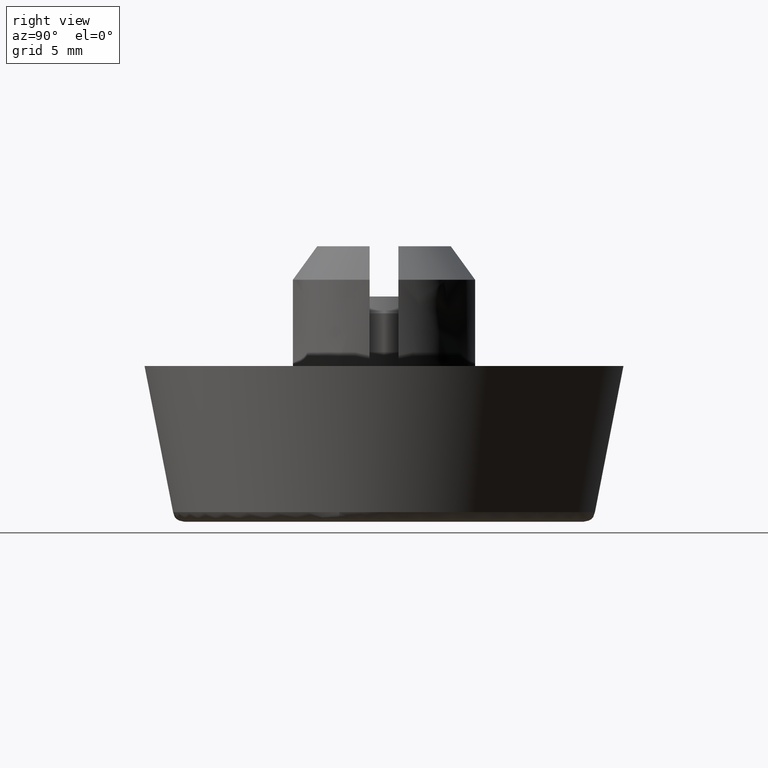
[diagram: clean part render]
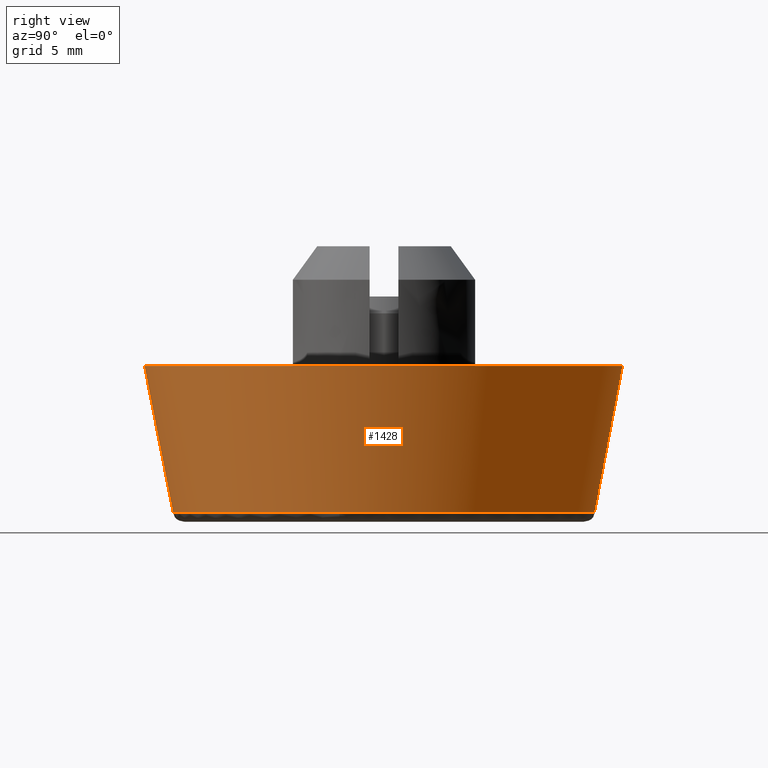
[diagram: same view with one face highlighted and labeled with its STEP entity id]
A machine part, right view. The second image highlights one B-rep face of the part: STEP entity #1428.
In plain terms, the highlighted face is a freeform B-spline surface patch.
Its self-contained STEP definition (entity closure, byte-faithful):
#1006=CARTESIAN_POINT('',(8.627317969124563,-1.871597676116213,-6.094423741713268));
#1007=VERTEX_POINT('',#1006);
#1008=CARTESIAN_POINT('',(8.827994857375364,0.0,-6.094423741647701));
#1009=VERTEX_POINT('',#1008);
#1010=CARTESIAN_POINT('',(8.627317969124565,-1.871597676116212,-6.094423741713268));
#1011=CARTESIAN_POINT('',(8.827994857369202,-0.946557350420813,-6.094423741680484));
#1012=CARTESIAN_POINT('',(8.827994857375364,0.0,-6.094423741647701));
#1020=(BOUNDED_CURVE()B_SPLINE_CURVE(2,(#1010,#1011,#1012),.UNSPECIFIED.,.F.,.U.)B_SPLINE_CURVE_WITH_KNOTS((3,3),(0.927406517058512,1.0),.UNSPECIFIED.)CURVE()GEOMETRIC_REPRESENTATION_ITEM()RATIONAL_B_SPLINE_CURVE((0.927299386196329,0.957475722232776,1.0))REPRESENTATION_ITEM(''));
#1021=EDGE_CURVE('',#1007,#1009,#1020,.T.);
#1053=CARTESIAN_POINT('',(0.846119025916015,8.787352501310256,-6.094427220944507));
#1054=VERTEX_POINT('',#1053);
#1070=CARTESIAN_POINT('',(8.827994857375364,0.0,-6.094423741647701));
#1071=CARTESIAN_POINT('',(8.827994825311269,8.018791774752364,-6.094425481282728));
#1072=CARTESIAN_POINT('',(0.846119025916015,8.787352501310256,-6.094427220944507));
#1080=(BOUNDED_CURVE()B_SPLINE_CURVE(2,(#1070,#1071,#1072),.UNSPECIFIED.,.F.,.U.)B_SPLINE_CURVE_WITH_KNOTS((3,3),(0.0,0.466698070071439),.UNSPECIFIED.)CURVE()GEOMETRIC_REPRESENTATION_ITEM()RATIONAL_B_SPLINE_CURVE((1.0,0.726614600085500,0.963582954274223))REPRESENTATION_ITEM(''));
#1081=EDGE_CURVE('',#1009,#1054,#1080,.T.);
#1109=CARTESIAN_POINT('',(-0.846119025916016,-8.787352501310256,-6.094427220944506));
#1110=VERTEX_POINT('',#1109);
#1111=CARTESIAN_POINT('',(-0.846119025916016,-8.787352501310256,-6.094427220944506));
#1112=CARTESIAN_POINT('',(-0.424035555022685,-8.827994209356426,-6.094427126929500));
#1113=CARTESIAN_POINT('',(0.000000060517126,-8.827994228803615,-6.094427025338519));
#1114=CARTESIAN_POINT('',(7.118207421188020,-8.827994555259972,-6.094425319949531));
#1115=CARTESIAN_POINT('',(8.627317969124565,-1.871597676116212,-6.094423741713268));
#1123=(BOUNDED_CURVE()B_SPLINE_CURVE(2,(#1111,#1112,#1113,#1114,#1115),.UNSPECIFIED.,.F.,.U.)B_SPLINE_CURVE_WITH_KNOTS((3,2,3),(0.466698070071439,0.500000000000000,0.927406517058512),.UNSPECIFIED.)CURVE()GEOMETRIC_REPRESENTATION_ITEM()RATIONAL_B_SPLINE_CURVE((0.963582954274223,0.980492181101048,1.0,0.749631058953771,0.927299386196329))REPRESENTATION_ITEM(''));
#1124=EDGE_CURVE('',#1110,#1007,#1123,.T.);
#1361=CARTESIAN_POINT('',(-0.843317517477260,-8.758187283637703,-6.246784335256099));
#1362=CARTESIAN_POINT('',(7.914869766160442,-9.601504801114963,-6.246784335256099));
#1363=CARTESIAN_POINT('',(8.758187283637703,-0.843317517477260,-6.246784335256099));
#1364=CARTESIAN_POINT('',(9.601504801114963,7.914869766160442,-6.246784335256099));
#1365=CARTESIAN_POINT('',(0.843317517477260,8.758187283637703,-6.246784335256099));
#1366=CARTESIAN_POINT('',(-0.961336025395364,-9.983856351172637,0.156169608381403));
#1367=CARTESIAN_POINT('',(9.022520325777274,-10.945192376568000,0.156169608381403));
#1368=CARTESIAN_POINT('',(9.983856351172637,-0.961336025395364,0.156169608381403));
#1369=CARTESIAN_POINT('',(10.945192376568000,9.022520325777274,0.156169608381403));
#1370=CARTESIAN_POINT('',(0.961336025395364,9.983856351172637,0.156169608381403));
#1378=(BOUNDED_SURFACE()B_SPLINE_SURFACE(2,1,((#1361,#1366),(#1362,#1367),(#1363,#1368),(#1364,#1369),(#1365,#1370)),.UNSPECIFIED.,.F.,.F.,.U.)B_SPLINE_SURFACE_WITH_KNOTS((3,2,3),(2,2),(0.0,16.618302188512061,33.236604377024122),(0.0,6.520277006053211),.UNSPECIFIED.)GEOMETRIC_REPRESENTATION_ITEM()RATIONAL_B_SPLINE_SURFACE(((1.0,1.0),(0.707106781186548,0.707106781186548),(1.0,1.0),(0.707106781186548,0.707106781186548),(1.0,1.0)))REPRESENTATION_ITEM('')SURFACE());
#1379=ORIENTED_EDGE('',*,*,#1124,.T.);
#1380=ORIENTED_EDGE('',*,*,#1021,.T.);
#1381=ORIENTED_EDGE('',*,*,#1081,.T.);
#1382=CARTESIAN_POINT('',(0.958456098082454,9.953961979206898,-0.000000734382645));
#1383=VERTEX_POINT('',#1382);
#1384=CARTESIAN_POINT('',(0.846119025916015,8.787352501310256,-6.094427220944507));
#1385=CARTESIAN_POINT('',(0.958456098082454,9.953961979206898,-0.000000734382645));
#1386=QUASI_UNIFORM_CURVE('',1,(#1384,#1385),.UNSPECIFIED.,.F.,.U.);
#1387=EDGE_CURVE('',#1054,#1383,#1386,.T.);
#1388=ORIENTED_EDGE('',*,*,#1387,.T.);
#1389=CARTESIAN_POINT('',(10.0,0.0,0.0));
#1390=VERTEX_POINT('',#1389);
#1391=CARTESIAN_POINT('',(0.958456098082454,9.953961979206898,-0.000000734382645));
#1392=CARTESIAN_POINT('',(9.999999993231977,9.083361690161116,-0.000000367191322));
#1393=CARTESIAN_POINT('',(10.0,0.0,0.0));
#1401=(BOUNDED_CURVE()B_SPLINE_CURVE(2,(#1391,#1392,#1393),.UNSPECIFIED.,.F.,.U.)B_SPLINE_CURVE_WITH_KNOTS((3,3),(0.266651071044353,0.500000000000000),.UNSPECIFIED.)CURVE()GEOMETRIC_REPRESENTATION_ITEM()RATIONAL_B_SPLINE_CURVE((0.963582738823511,0.726614724366036,1.0))REPRESENTATION_ITEM(''));
#1402=EDGE_CURVE('',#1383,#1390,#1401,.T.);
#1403=ORIENTED_EDGE('',*,*,#1402,.T.);
#1404=CARTESIAN_POINT('',(-0.958456098082454,-9.953961979206898,-0.000000734382645));
#1405=VERTEX_POINT('',#1404);
#1406=CARTESIAN_POINT('',(10.0,0.0,0.0));
#1407=CARTESIAN_POINT('',(10.000000006147641,-9.999999936154222,-0.000000333533162));
#1408=CARTESIAN_POINT('',(0.000000012915664,-9.999999865865508,-0.000000700724484));
#1409=CARTESIAN_POINT('',(-0.480333719912017,-9.999999862489304,-0.000000718361922));
#1410=CARTESIAN_POINT('',(-0.958456098082454,-9.953961979206898,-0.000000734382645));
#1418=(BOUNDED_CURVE()B_SPLINE_CURVE(2,(#1406,#1407,#1408,#1409,#1410),.UNSPECIFIED.,.F.,.U.)B_SPLINE_CURVE_WITH_KNOTS((3,2,3),(0.500000000000000,0.750000000000000,0.766651071044353),.UNSPECIFIED.)CURVE()GEOMETRIC_REPRESENTATION_ITEM()RATIONAL_B_SPLINE_CURVE((1.0,0.707106781186548,1.0,0.980492056820512,0.963582738823511))REPRESENTATION_ITEM(''));
#1419=EDGE_CURVE('',#1390,#1405,#1418,.T.);
#1420=ORIENTED_EDGE('',*,*,#1419,.T.);
#1421=CARTESIAN_POINT('',(-0.846119025916016,-8.787352501310256,-6.094427220944506));
#1422=CARTESIAN_POINT('',(-0.958456098082454,-9.953961979206898,-0.000000734382645));
#1423=QUASI_UNIFORM_CURVE('',1,(#1421,#1422),.UNSPECIFIED.,.F.,.U.);
#1424=EDGE_CURVE('',#1110,#1405,#1423,.T.);
#1425=ORIENTED_EDGE('',*,*,#1424,.F.);
#1426=EDGE_LOOP('',(#1379,#1380,#1381,#1388,#1403,#1420,#1425));
#1427=FACE_OUTER_BOUND('',#1426,.T.);
#1428=ADVANCED_FACE('',(#1427),#1378,.T.);